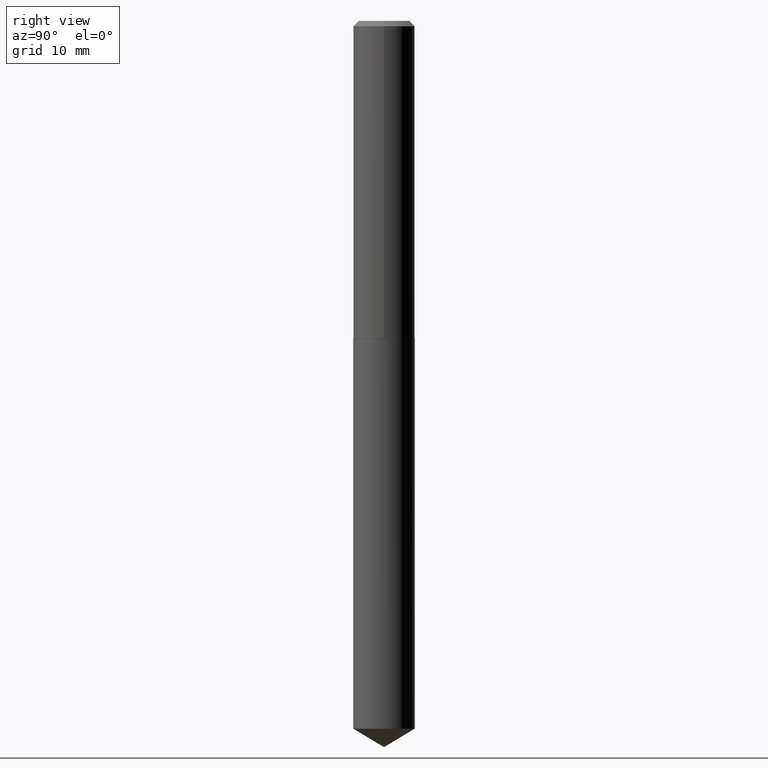
[diagram: clean part render]
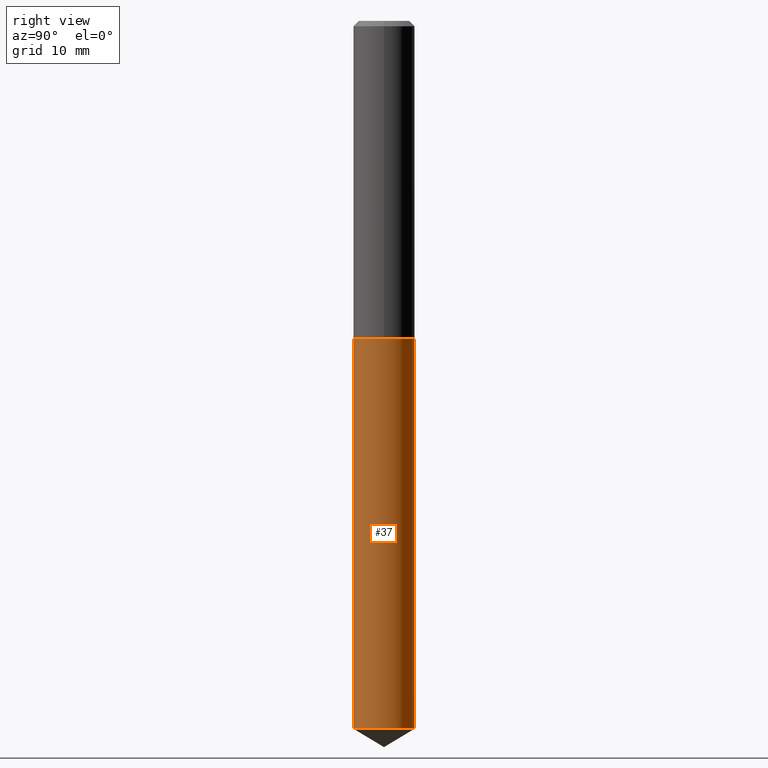
[diagram: same view with one face highlighted and labeled with its STEP entity id]
A machine part, right view. The second image highlights one B-rep face of the part: STEP entity #37.
In plain terms, the highlighted cylindrical surface (edge-blend (fillet) strip) has radius 4.5644 mm, axis along (-0, 0, 1).
Its self-contained STEP definition (entity closure, byte-faithful):
#2 = VERTEX_POINT ( 'NONE', #67 ) ;
#7 = CARTESIAN_POINT ( 'NONE',  ( 1.276845296161000998E-15, 0.1796999999999854825, -4.142025346760749294 ) ) ;
#12 = LINE ( 'NONE', #288, #386 ) ;
#21 = ORIENTED_EDGE ( 'NONE', *, *, #198, .T. ) ;
#30 = ORIENTED_EDGE ( 'NONE', *, *, #233, .F. ) ;
#37 = ADVANCED_FACE ( 'NONE', ( #273 ), #388, .T. ) ;
#39 = DIRECTION ( 'NONE',  ( -6.982962677686265922E-15, -1.000000000000000000, 3.040454083098790380E-15 ) ) ;
#45 = CARTESIAN_POINT ( 'NONE',  ( 4.547104698220641654E-29, -6.492060401444943851E-15, -1.859399999999999498 ) ) ;
#50 = DIRECTION ( 'NONE',  ( -2.445480017545961614E-29, 3.491465283536333251E-15, 1.000000000000000000 ) ) ;
#54 = DIRECTION ( 'NONE',  ( -6.982962677686265922E-15, -1.000000000000000000, 3.040454083098790380E-15 ) ) ;
#55 = VERTEX_POINT ( 'NONE', #7 ) ;
#67 = CARTESIAN_POINT ( 'NONE',  ( -1.254838393180176568E-15, -0.1797000000000064934, -1.859399999999999054 ) ) ;
#129 = AXIS2_PLACEMENT_3D ( 'NONE', #181, #213, #54 ) ;
#130 = CARTESIAN_POINT ( 'NONE',  ( 4.547104698220641654E-29, -6.492060401444943851E-15, -1.859399999999999498 ) ) ;
#132 = EDGE_CURVE ( 'NONE', #203, #2, #12, .T. ) ;
#141 = EDGE_CURVE ( 'NONE', #55, #306, #257, .T. ) ;
#163 = CARTESIAN_POINT ( 'NONE',  ( 1.276845296161001393E-15, 0.1796999999999935038, -1.859400000000000164 ) ) ;
#164 = CIRCLE ( 'NONE', #129, 0.1796999999999999986 ) ;
#169 = ORIENTED_EDGE ( 'NONE', *, *, #141, .T. ) ;
#172 = CARTESIAN_POINT ( 'NONE',  ( -1.254838393180120559E-15, -0.1797000000000144315, -4.142025346760748405 ) ) ;
#180 = DIRECTION ( 'NONE',  ( -2.445480017545961614E-29, 3.491465283536333251E-15, 1.000000000000000000 ) ) ;
#181 = CARTESIAN_POINT ( 'NONE',  ( 1.012921937126797406E-28, -1.446176755498018417E-14, -4.142025346760748405 ) ) ;
#184 = AXIS2_PLACEMENT_3D ( 'NONE', #45, #50, #318 ) ;
#198 = EDGE_CURVE ( 'NONE', #203, #55, #164, .T. ) ;
#203 = VERTEX_POINT ( 'NONE', #172 ) ;
#213 = DIRECTION ( 'NONE',  ( -2.445480017545961614E-29, 3.491465283536333251E-15, 1.000000000000000000 ) ) ;
#222 = VECTOR ( 'NONE', #240, 39.37007874015748143 ) ;
#225 = AXIS2_PLACEMENT_3D ( 'NONE', #130, #180, #39 ) ;
#233 = EDGE_CURVE ( 'NONE', #2, #306, #290, .T. ) ;
#240 = DIRECTION ( 'NONE',  ( -2.445480017545961614E-29, 3.491465283536333646E-15, 1.000000000000000000 ) ) ;
#257 = LINE ( 'NONE', #375, #222 ) ;
#273 = FACE_OUTER_BOUND ( 'NONE', #350, .T. ) ;
#288 = CARTESIAN_POINT ( 'NONE',  ( -1.254838393180176568E-15, -0.1797000000000064934, -1.859399999999999054 ) ) ;
#290 = CIRCLE ( 'NONE', #184, 0.1796999999999999986 ) ;
#306 = VERTEX_POINT ( 'NONE', #163 ) ;
#318 = DIRECTION ( 'NONE',  ( -6.982962677686265922E-15, -1.000000000000000000, 3.040454083098790380E-15 ) ) ;
#347 = DIRECTION ( 'NONE',  ( -2.445480017545961614E-29, 3.491465283536333646E-15, 1.000000000000000000 ) ) ;
#350 = EDGE_LOOP ( 'NONE', ( #21, #169, #30, #361 ) ) ;
#361 = ORIENTED_EDGE ( 'NONE', *, *, #132, .F. ) ;
#375 = CARTESIAN_POINT ( 'NONE',  ( 1.276845296160945187E-15, 0.1796999999999935038, -1.859400000000000164 ) ) ;
#386 = VECTOR ( 'NONE', #347, 39.37007874015748143 ) ;
#388 = CYLINDRICAL_SURFACE ( 'NONE', #225, 0.1796999999999999986 ) ;